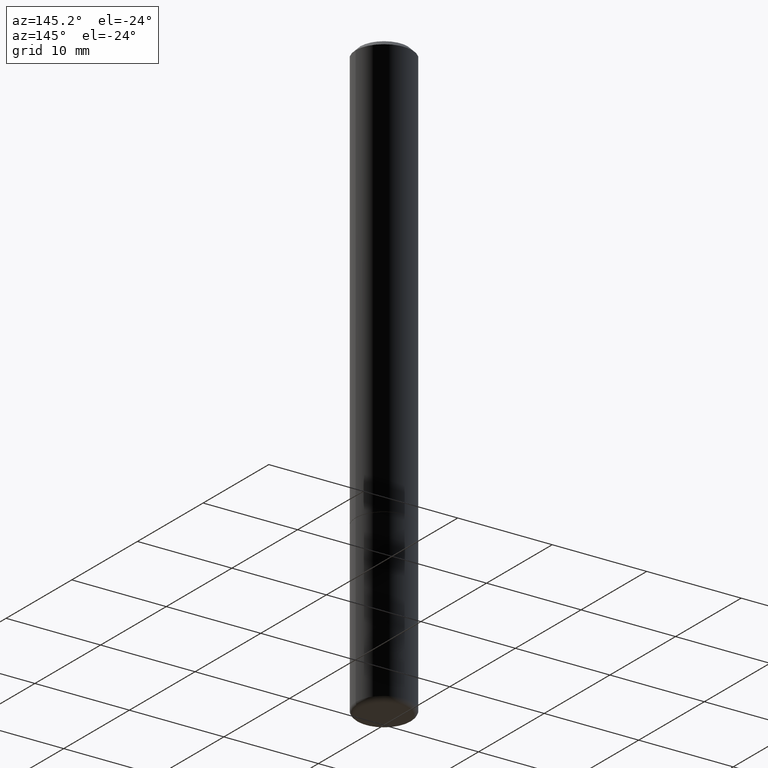
[diagram: clean part render]
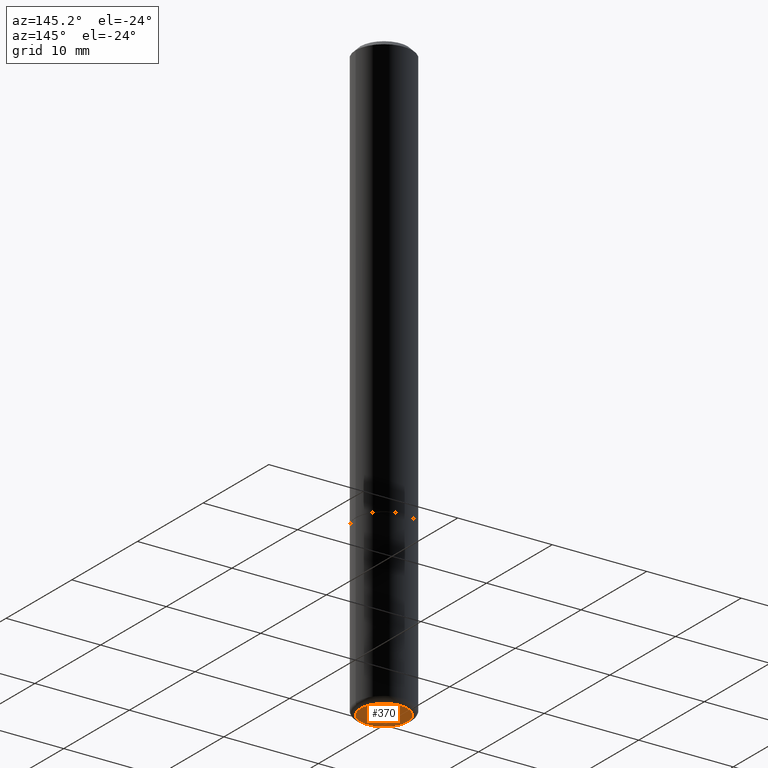
[diagram: same view with one face highlighted and labeled with its STEP entity id]
A machine part, auxiliary view. The second image highlights one B-rep face of the part: STEP entity #370.
In plain terms, the highlighted planar face has unit normal (0, -0, -1).
Its self-contained STEP definition (entity closure, byte-faithful):
#6 = ORIENTED_EDGE ( 'NONE', *, *, #185, .F. ) ;
#37 = CIRCLE ( 'NONE', #136, 0.09840000000000000135 ) ;
#64 = EDGE_CURVE ( 'NONE', #340, #272, #37, .T. ) ;
#109 = ORIENTED_EDGE ( 'NONE', *, *, #64, .F. ) ;
#136 = AXIS2_PLACEMENT_3D ( 'NONE', #344, #180, #148 ) ;
#141 = CARTESIAN_POINT ( 'NONE',  ( 6.065496279980994755E-29, -8.659921164732655335E-15, -2.480300000000000171 ) ) ;
#143 = AXIS2_PLACEMENT_3D ( 'NONE', #284, #388, #187 ) ;
#148 = DIRECTION ( 'NONE',  ( 1.000000000000000000, -6.982962677686261977E-15, 0.000000000000000000 ) ) ;
#180 = DIRECTION ( 'NONE',  ( -2.445468806185136597E-29, 3.491481338843145583E-15, 1.000000000000000000 ) ) ;
#185 = EDGE_CURVE ( 'NONE', #272, #340, #211, .T. ) ;
#187 = DIRECTION ( 'NONE',  ( 1.000000000000000000, -6.982962677686261977E-15, 0.000000000000000000 ) ) ;
#211 = CIRCLE ( 'NONE', #143, 0.09840000000000000135 ) ;
#212 = DIRECTION ( 'NONE',  ( 2.438088387897960049E-29, -3.491481338843145188E-15, -1.000000000000000000 ) ) ;
#213 = AXIS2_PLACEMENT_3D ( 'NONE', #141, #212, #377 ) ;
#214 = EDGE_LOOP ( 'NONE', ( #6, #109 ) ) ;
#272 = VERTEX_POINT ( 'NONE', #318 ) ;
#284 = CARTESIAN_POINT ( 'NONE',  ( 6.065496279980994755E-29, -8.659921164732655335E-15, -2.480300000000000171 ) ) ;
#318 = CARTESIAN_POINT ( 'NONE',  ( 0.09840000000000000135, -9.347044692216982806E-15, -2.480300000000000171 ) ) ;
#340 = VERTEX_POINT ( 'NONE', #392 ) ;
#344 = CARTESIAN_POINT ( 'NONE',  ( 6.065496279980994755E-29, -8.659921164732655335E-15, -2.480300000000000171 ) ) ;
#370 = ADVANCED_FACE ( 'NONE', ( #408 ), #381, .T. ) ;
#377 = DIRECTION ( 'NONE',  ( -1.000000000000000000, 6.982962677686265922E-15, -4.876176775795935793E-29 ) ) ;
#381 = PLANE ( 'NONE',  #213 ) ;
#388 = DIRECTION ( 'NONE',  ( -2.445468806185136597E-29, 3.491481338843145583E-15, 1.000000000000000000 ) ) ;
#392 = CARTESIAN_POINT ( 'NONE',  ( -0.09840000000000000135, -7.856367562084741595E-15, -2.480300000000000171 ) ) ;
#408 = FACE_OUTER_BOUND ( 'NONE', #214, .T. ) ;